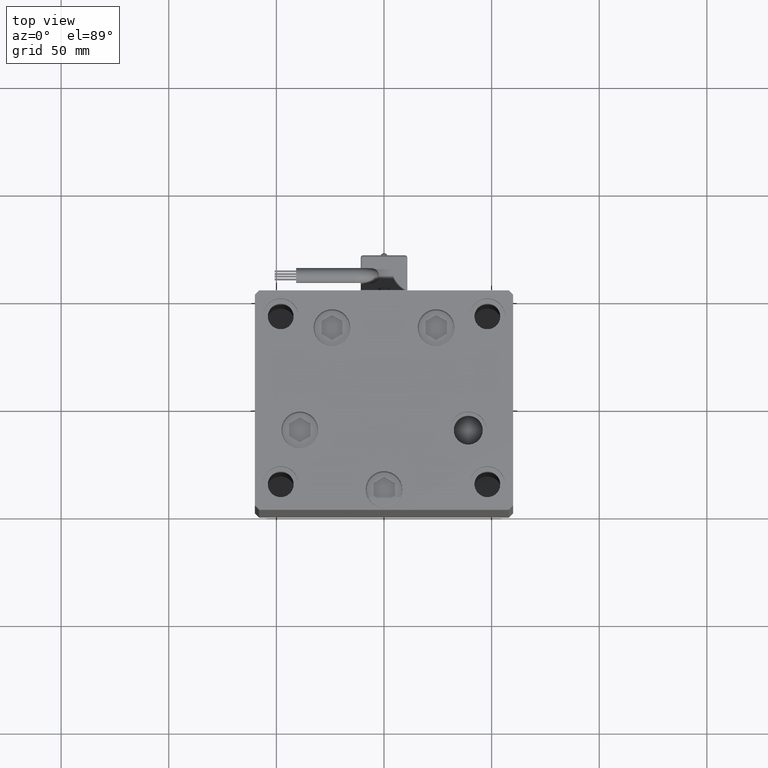
[diagram: clean part render]
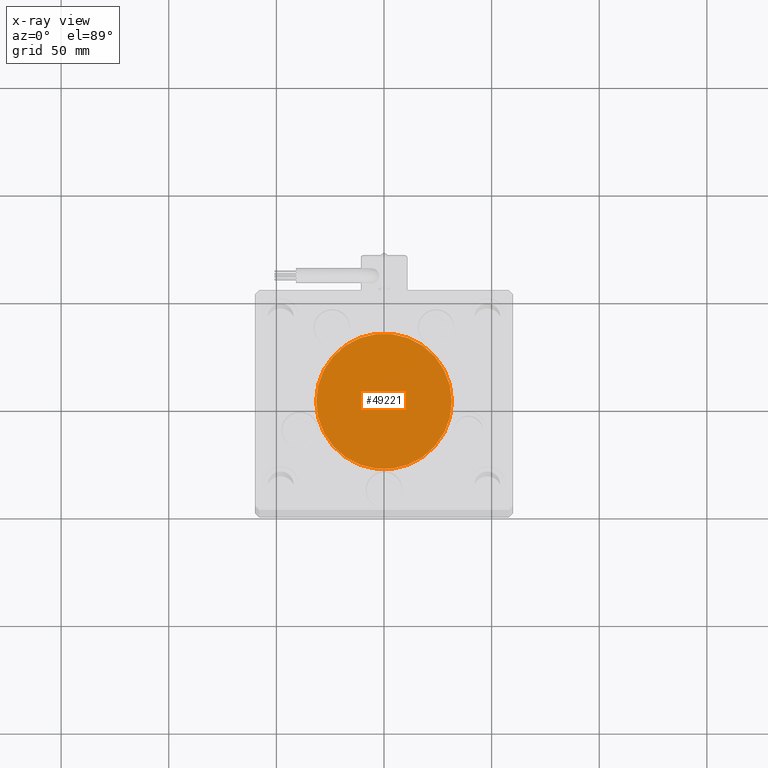
[diagram: x-ray — body ghosted, one internal face saturated and labeled with its STEP entity id]
A machine part, top view, then the same camera in x-ray: the body is ghosted and one INTERNAL B-rep face — a face not visible from any outside direction — is saturated and labeled: STEP entity #49221.
In plain terms, the highlighted planar face has unit normal (0, 0, -1).
Its self-contained STEP definition (entity closure, byte-faithful):
#6191 = DIRECTION ( 'NONE',  ( -1.000000000000000000, 0.000000000000000000, 0.000000000000000000 ) ) ;
#8231 = DIRECTION ( 'NONE',  ( 0.000000000000000000, 0.000000000000000000, -1.000000000000000000 ) ) ;
#8383 = EDGE_CURVE ( 'NONE', #51423, #34689, #40405, .T. ) ;
#10268 = CARTESIAN_POINT ( 'NONE',  ( 0.000000000000000000, 0.000000000000000000, -34.25000000000000000 ) ) ;
#11906 = EDGE_LOOP ( 'NONE', ( #48388, #40870 ) ) ;
#12253 = CIRCLE ( 'NONE', #43506, 31.50000000000000000 ) ;
#18448 = CARTESIAN_POINT ( 'NONE',  ( 31.50000000000000000, 0.000000000000000000, -34.25000000000000000 ) ) ;
#19601 = DIRECTION ( 'NONE',  ( -1.000000000000000000, 0.000000000000000000, 0.000000000000000000 ) ) ;
#23284 = CARTESIAN_POINT ( 'NONE',  ( 0.000000000000000000, 0.000000000000000000, -34.25000000000000000 ) ) ;
#24115 = CARTESIAN_POINT ( 'NONE',  ( -31.50000000000000000, 3.857637417314161900E-15, -34.25000000000000000 ) ) ;
#26613 = AXIS2_PLACEMENT_3D ( 'NONE', #23284, #8231, #37324 ) ;
#26852 = DIRECTION ( 'NONE',  ( 0.000000000000000000, 0.000000000000000000, -1.000000000000000000 ) ) ;
#29954 = EDGE_CURVE ( 'NONE', #34689, #51423, #12253, .T. ) ;
#34689 = VERTEX_POINT ( 'NONE', #24115 ) ;
#36207 = CARTESIAN_POINT ( 'NONE',  ( 0.000000000000000000, 0.000000000000000000, -34.25000000000000000 ) ) ;
#37324 = DIRECTION ( 'NONE',  ( -1.000000000000000000, 0.000000000000000000, -0.000000000000000000 ) ) ;
#39613 = PLANE ( 'NONE',  #26613 ) ;
#40405 = CIRCLE ( 'NONE', #41258, 31.50000000000000000 ) ;
#40870 = ORIENTED_EDGE ( 'NONE', *, *, #29954, .T. ) ;
#41258 = AXIS2_PLACEMENT_3D ( 'NONE', #36207, #53597, #19601 ) ;
#43506 = AXIS2_PLACEMENT_3D ( 'NONE', #10268, #26852, #6191 ) ;
#44214 = FACE_OUTER_BOUND ( 'NONE', #11906, .T. ) ;
#48388 = ORIENTED_EDGE ( 'NONE', *, *, #8383, .T. ) ;
#49221 = ADVANCED_FACE ( 'NONE', ( #44214 ), #39613, .T. ) ;
#51423 = VERTEX_POINT ( 'NONE', #18448 ) ;
#53597 = DIRECTION ( 'NONE',  ( 0.000000000000000000, 0.000000000000000000, -1.000000000000000000 ) ) ;